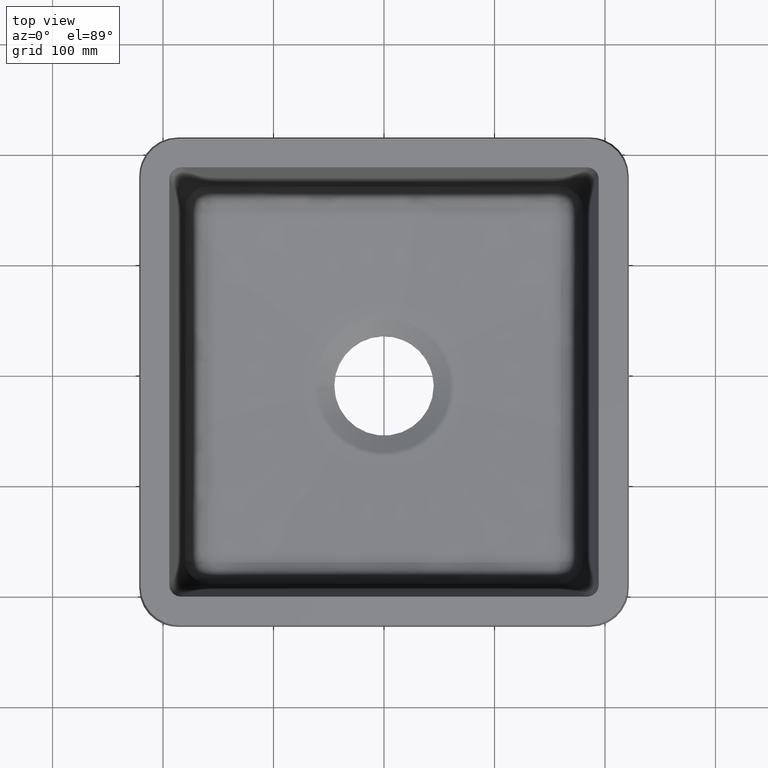
[diagram: clean part render]
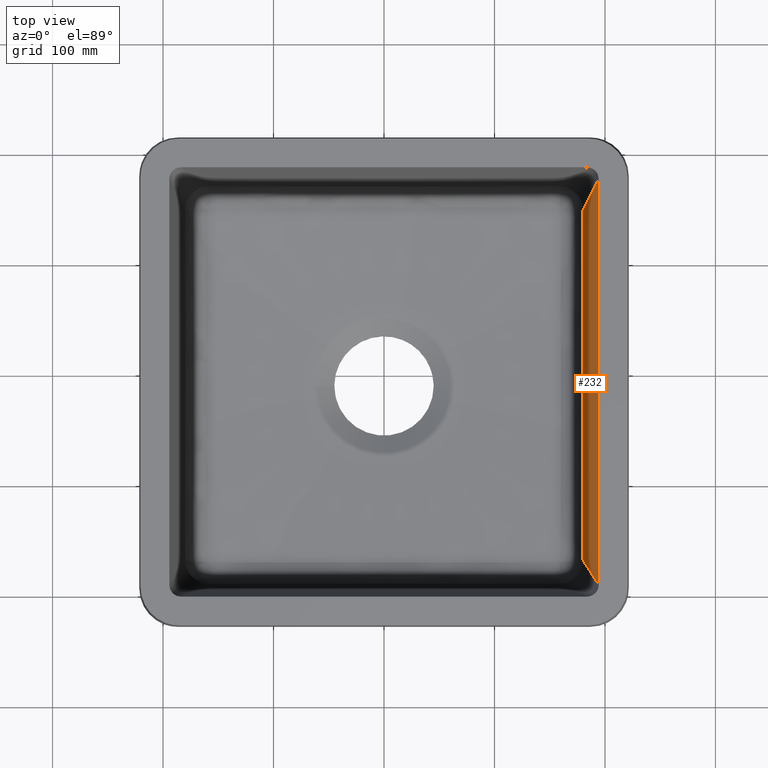
[diagram: same view with one face highlighted and labeled with its STEP entity id]
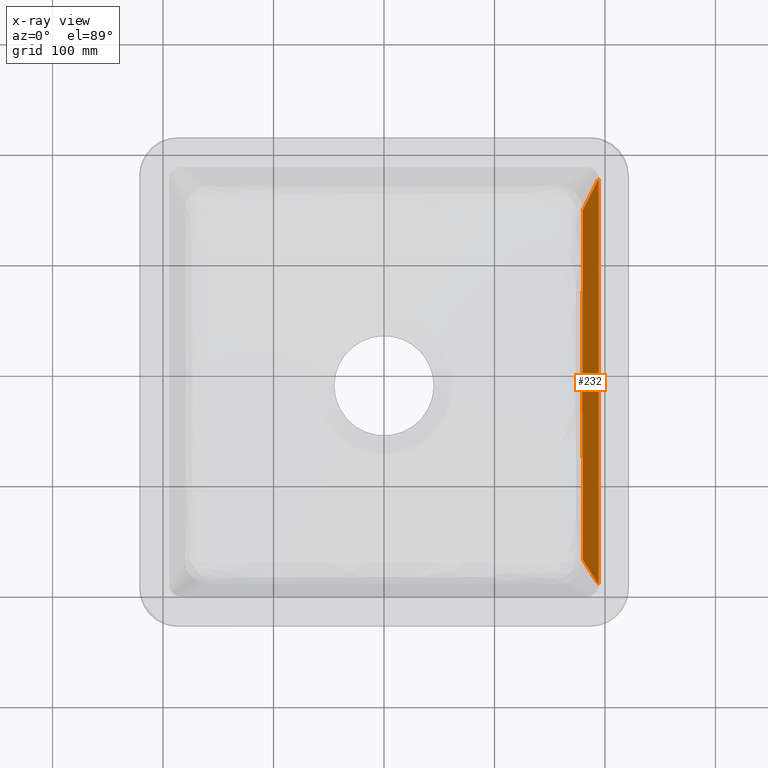
[diagram: x-ray of the same camera — body ghosted, the highlighted face saturated]
A machine part, top view. The second image highlights one B-rep face of the part: STEP entity #232.
The next image is the same camera in x-ray: the body ghosted, the highlighted face saturated — about 0% of this face is hidden behind the body in this view.
In plain terms, the highlighted planar face has unit normal (0.9962, 0, -0.0872).
Its self-contained STEP definition (entity closure, byte-faithful):
#85=LINE('',#3676,#109);
#109=VECTOR('',#1535,1.);
#121=PLANE('',#1390);
#232=ADVANCED_FACE('',(#358),#121,.F.);
#358=FACE_OUTER_BOUND('',#446,.T.);
#446=EDGE_LOOP('',(#811,#812,#813,#814));
#811=ORIENTED_EDGE('',*,*,#1178,.T.);
#812=ORIENTED_EDGE('',*,*,#1186,.F.);
#813=ORIENTED_EDGE('',*,*,#1187,.F.);
#814=ORIENTED_EDGE('',*,*,#1184,.T.);
#1002=VERTEX_POINT('',#3675);
#1003=VERTEX_POINT('',#3677);
#1007=VERTEX_POINT('',#3721);
#1008=VERTEX_POINT('',#3766);
#1178=EDGE_CURVE('',#1003,#1002,#85,.T.);
#1184=EDGE_CURVE('',#1007,#1003,#1307,.T.);
#1186=EDGE_CURVE('',#1008,#1002,#1308,.T.);
#1187=EDGE_CURVE('',#1007,#1008,#1309,.T.);
#1307=B_SPLINE_CURVE_WITH_KNOTS('',3,(#3713,#3714,#3715,#3716,#3717,#3718,
#3719,#3720),.UNSPECIFIED.,.F.,.F.,(4,2,2,4),(0.,0.530612244897959,0.795918367346939,
1.),.UNSPECIFIED.);
#1308=B_SPLINE_CURVE_WITH_KNOTS('',3,(#3758,#3759,#3760,#3761,#3762,#3763,
#3764,#3765),.UNSPECIFIED.,.F.,.F.,(4,2,2,4),(0.,0.530612244897959,0.795918367346939,
1.),.UNSPECIFIED.);
#1309=B_SPLINE_CURVE_WITH_KNOTS('',3,(#3767,#3768,#3769,#3770,#3771,#3772),
 .UNSPECIFIED.,.F.,.F.,(4,2,4),(0.,0.5,1.),.UNSPECIFIED.);
#1390=AXIS2_PLACEMENT_3D('',#3773,#1544,#1545);
#1535=DIRECTION('',(-2.84672570416707E-16,1.,0.));
#1544=DIRECTION('',(0.996194698091746,2.83589305341272E-16,-0.0871557427476581));
#1545=DIRECTION('',(0.0871557427476581,0.,0.996194698091746));
#3675=CARTESIAN_POINT('',(194.300090691793,-25.2667379424477,-1.10989776397341E-12));
#3676=CARTESIAN_POINT('',(194.300090691793,-14.,0.));
#3677=CARTESIAN_POINT('',(194.300090691793,-392.733262057552,-1.17426323294663E-12));
#3713=CARTESIAN_POINT('',(145.296087599908,-305.482547393413,-560.118318384919));
#3714=CARTESIAN_POINT('',(156.358090732759,-325.178237909725,-433.679044003126));
#3715=CARTESIAN_POINT('',(167.420093865609,-344.873928426037,-307.239769621333));
#3716=CARTESIAN_POINT('',(184.013098564886,-374.417464200506,-117.580858048643));
#3717=CARTESIAN_POINT('',(189.544100131311,-384.265309458662,-54.3612208577469));
#3718=CARTESIAN_POINT('',(199.329718287294,-401.688420300016,57.4889064799931));
#3719=CARTESIAN_POINT('',(203.584334876852,-409.263685883213,106.119396626837));
#3720=CARTESIAN_POINT('',(207.83895146641,-416.83895146641,154.74988677368));
#3721=CARTESIAN_POINT('',(180.089055655968,-367.430778897801,-162.432873735852));
#3758=CARTESIAN_POINT('',(145.296087599908,-112.517452606588,-560.11831838492));
#3759=CARTESIAN_POINT('',(156.358090732759,-92.821762090275,-433.679044003126));
#3760=CARTESIAN_POINT('',(167.42009386561,-73.1260715739625,-307.239769621333));
#3761=CARTESIAN_POINT('',(184.013098564886,-43.5825357994938,-117.580858048643));
#3762=CARTESIAN_POINT('',(189.544100131311,-33.7346905413376,-54.3612208577469));
#3763=CARTESIAN_POINT('',(199.329718287294,-16.3115796999843,57.4889064799932));
#3764=CARTESIAN_POINT('',(203.584334876852,-8.73631411678716,106.119396626837));
#3765=CARTESIAN_POINT('',(207.83895146641,-1.16104853359006,154.74988677368));
#3766=CARTESIAN_POINT('',(180.089055655968,-50.5692211021993,-162.432873735852));
#3767=CARTESIAN_POINT('',(180.089055655968,-367.430778897801,-162.432873735852));
#3768=CARTESIAN_POINT('',(179.860279041316,-314.652442792431,-165.047802406974));
#3769=CARTESIAN_POINT('',(179.68652295149,-261.863791229051,-167.033843601602));
#3770=CARTESIAN_POINT('',(179.686348553431,-156.221367889194,-167.035836980537));
#3771=CARTESIAN_POINT('',(179.860196479322,-103.366604104684,-165.048746094878));
#3772=CARTESIAN_POINT('',(180.089055655968,-50.5692211021995,-162.432873735852));
#3773=CARTESIAN_POINT('',(195.,-14.,8.));